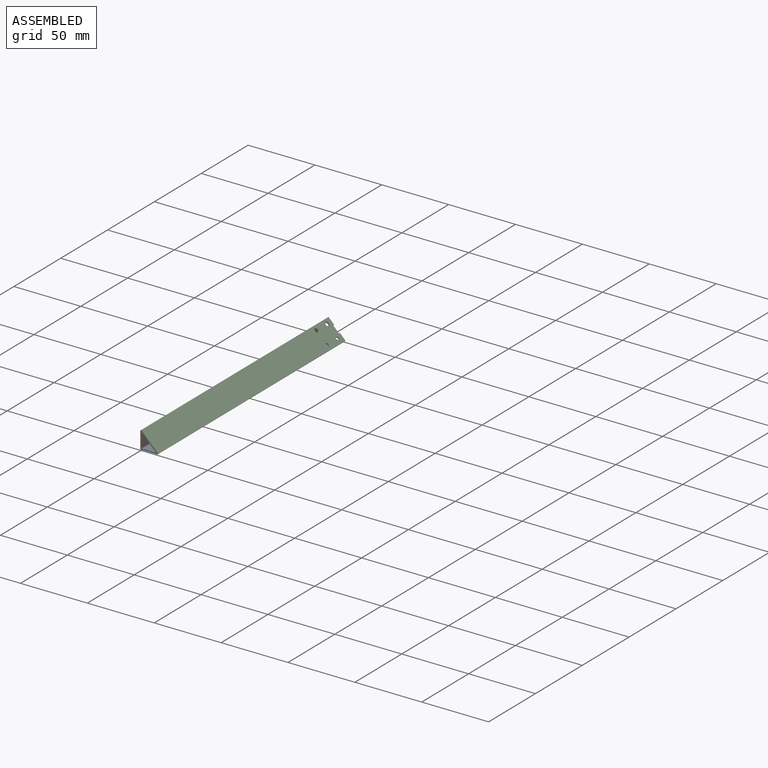
[diagram: assembled view]
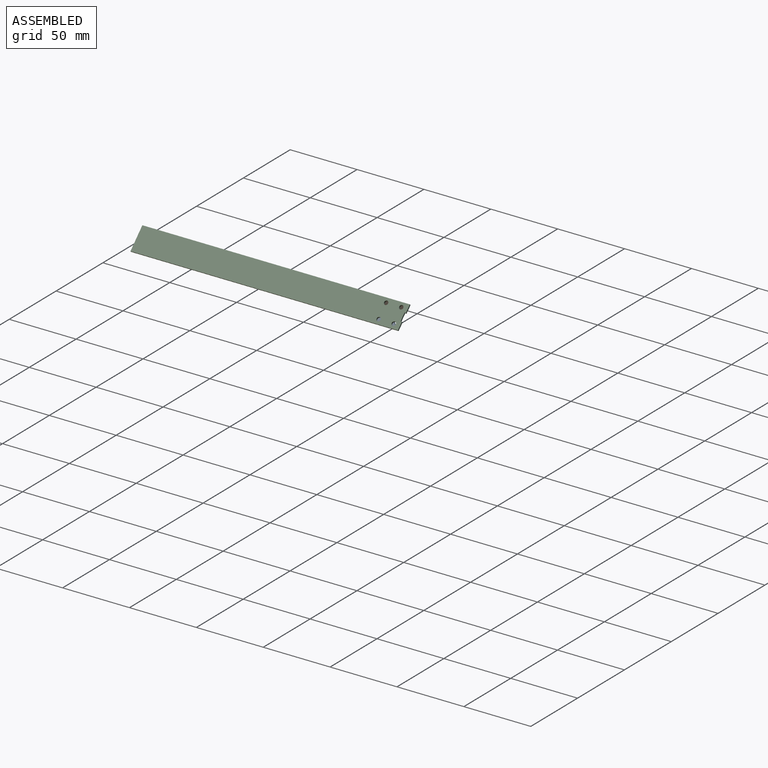
[diagram: assembled view, second angle]
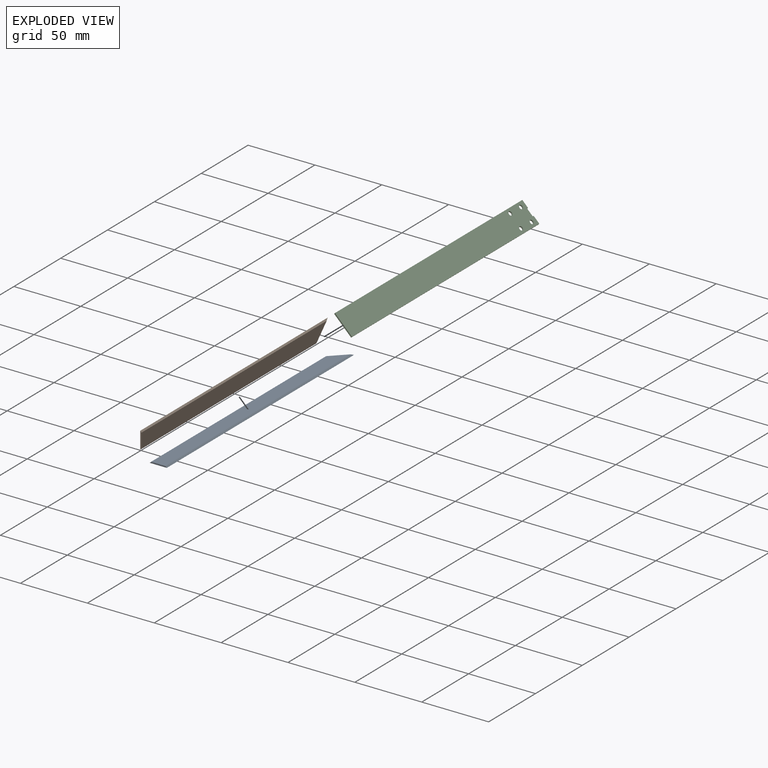
[diagram: exploded view]
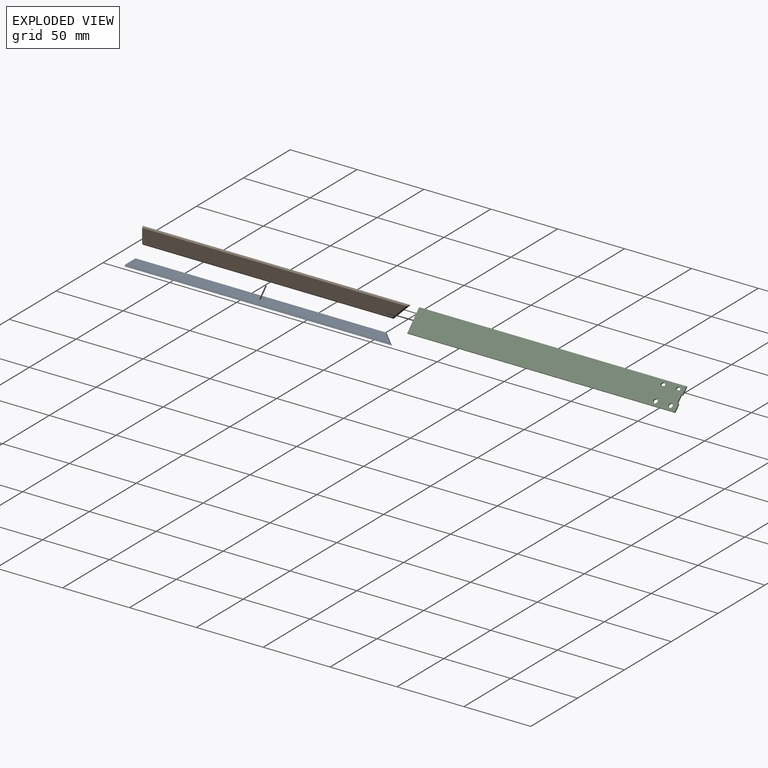
[diagram: exploded view, second angle]
ASSEMBLY  parts=3 mates=4
PART A: 6 faces, bbox 12.7x200x1 mm
  f0: plane 12.73x1mm, normal (0,-1,0), area 11.7mm2, adj f1,f2,f3,f4
  f1: plane 197.59x10.73mm, normal (0,0,-1), area 2062.1mm2, adj f0,f3,f4,f5
  f2: plane 200x12.73mm, normal (0,0,1), area 2464.6mm2, adj f0,f3,f4,f5
  f3: plane 187.27x1mm, normal (0.71,0,-0.71), area 264.5mm2, adj f0,f1,f2,f5
  f4: plane 200x1mm, normal (-0.71,0,-0.71), area 281.1mm2, adj f0,f1,f2,f5
  f5: plane 13.14x12.73mm, normal (0.5,0.5,-0.71), area 23.5mm2, adj f1,f2,f3,f4
PART B: 6 faces, bbox 12.7x200x1 mm
  f0: plane 12.73x1mm, normal (0,-1,0), area 11.7mm2, adj f1,f2,f3,f4
  f1: plane 197.59x10.73mm, normal (0,0,-1), area 2062.1mm2, adj f0,f3,f4,f5
  f2: plane 200x12.73mm, normal (0,0,1), area 2464.6mm2, adj f0,f3,f4,f5
  f3: plane 200x1mm, normal (0.71,0,-0.71), area 281.1mm2, adj f0,f1,f2,f5
  f4: plane 187.27x1mm, normal (-0.71,0,-0.71), area 264.5mm2, adj f0,f1,f2,f5
  f5: plane 13.14x12.73mm, normal (-0.5,0.5,-0.71), area 23.5mm2, adj f1,f2,f3,f4
PART C: 14 faces, bbox 18x200x1 mm
  f0: plane 6x1mm, normal (0,1,0), area 6mm2, adj f2,f5,f6,f10
  f1: plane 6x1mm, normal (0,1,0), area 6mm2, adj f4,f5,f6,f9
  f2: plane 200x1mm, normal (-1,0,0), area 200mm2, adj f0,f3,f5,f6
  f3: plane 18x1mm, normal (0,-1,0), area 18mm2, adj f2,f4,f5,f6
  f4: plane 200x1mm, normal (1,0,0), area 200mm2, adj f1,f3,f5,f6
  f5: plane 200x18mm, normal (0,0,1), area 3565.7mm2, adj f0,f1,f2,f3,f4,f7,f8,f9
  f6: plane 200x18mm, normal (0,0,-1), area 3565.7mm2, adj f0,f1,f2,f3,f4,f7,f8,f9
  f7: cylinder r=1.5mm len=3mm, axis (0,0,1), area 9.4mm2, adj f5,f6
  f8: plane 6x1mm, normal (0,1,0), area 6mm2, adj f5,f6,f9,f10
  f9: plane 1x1mm, normal (-1,0,0), area 1mm2, adj f1,f5,f6,f8
  f10: plane 1x1mm, normal (1,0,0), area 1mm2, adj f0,f5,f6,f8
  f11: cylinder r=1.5mm len=3mm, axis (0,0,1), area 9.4mm2, adj f5,f6
  f12: cylinder r=1.5mm len=3mm, axis (0,0,1), area 9.4mm2, adj f5,f6
  f13: cylinder r=1.5mm len=3mm, axis (0,0,1), area 9.4mm2, adj f5,f6
PLACE A rot(axis=(0,1,0),180deg) t=(29.54,-64.25,29.86)mm
PLACE B rot(axis=(0,-1,0),90deg) t=(29.54,-64.25,42.59)mm
PLACE C rot(axis=(0,1,0),45deg) t=(35.9,-64.25,36.22)mm
MATE planar A.f3 <-> B.f4  axis (-0.71,0,0.71) through (30.04,29.29,30.36)mm
MATE planar B.f0 <-> C.f3  axis (0,-1,0) through (30.03,-64.25,36.22)mm
MATE planar A.f4 <-> C.f6  axis (0.71,0,0.71) through (41.77,35.15,30.36)mm
MATE planar B.f3 <-> C.f6  axis (0.71,0,0.71) through (30.04,35.15,42.09)mm
